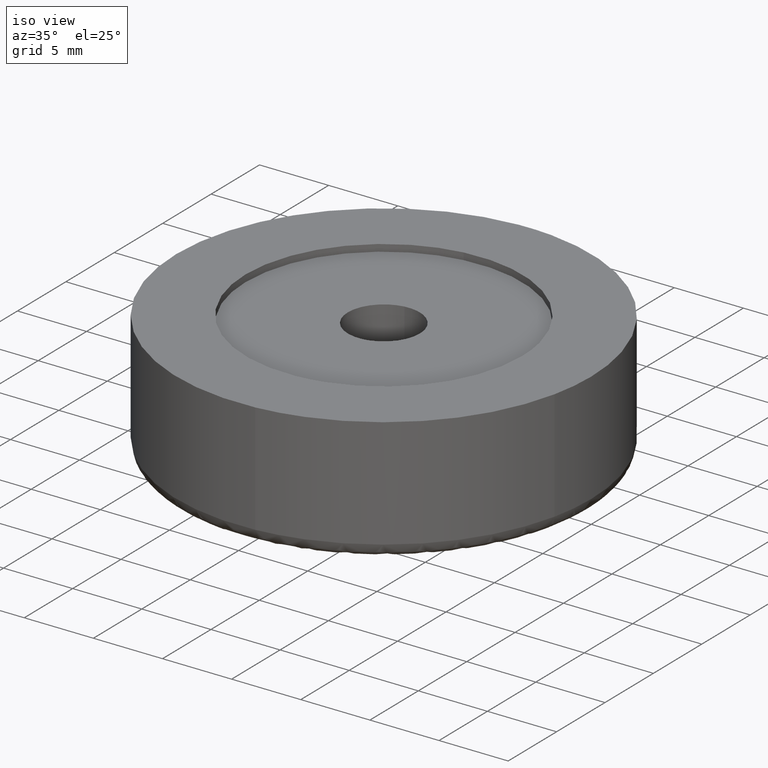
[diagram: clean part render]
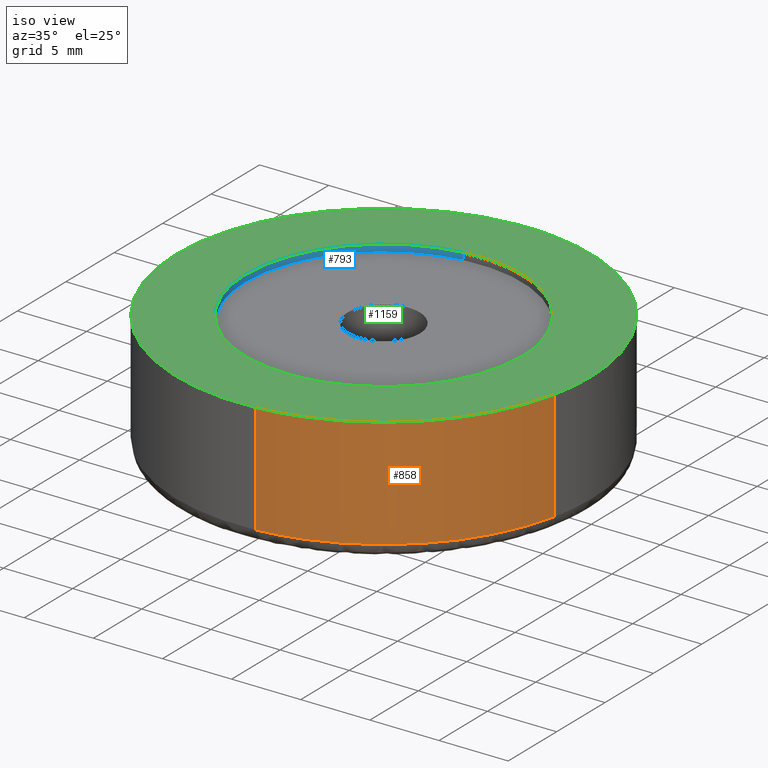
[diagram: same view with three faces highlighted in distinct colors, each labeled with its STEP entity id]
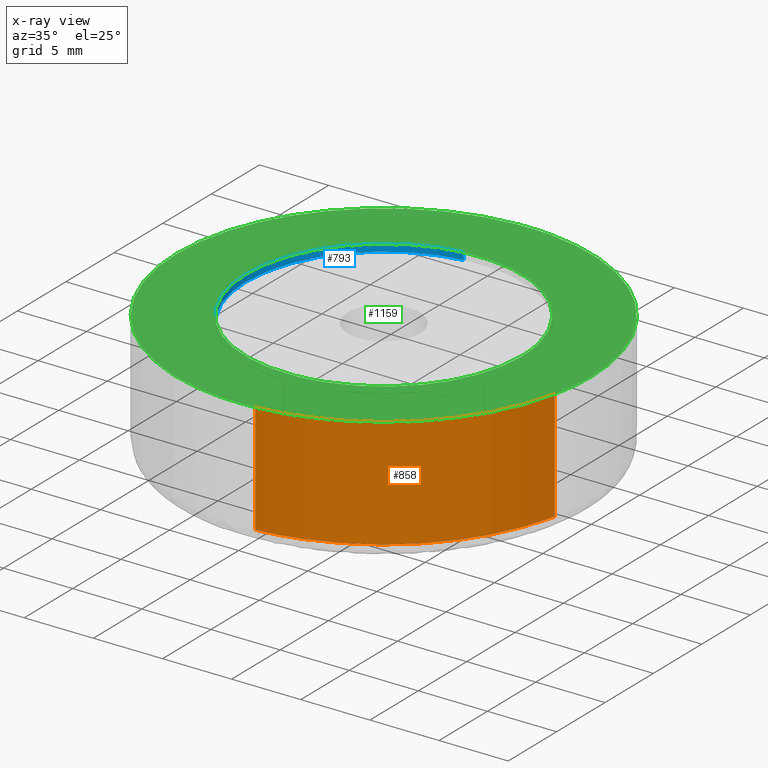
[diagram: x-ray of the same camera — body ghosted, the three highlighted faces saturated]
A machine part, iso view with three faces highlighted in distinct colors.
The next image is the same camera in x-ray (body ghosted, the three faces saturated) — at least one of them is partly hidden behind the body in this view.
Their STEP definitions:

[orange] entity #858 — the highlighted face is a freeform B-spline surface patch.
#794=CARTESIAN_POINT('',(14.659905936596909,-3.177404424619607,9.200000000003879));
#795=CARTESIAN_POINT('',(14.649727296626640,-3.222992206056471,9.200000000003877));
#796=CARTESIAN_POINT('',(12.224666383070369,-14.084280867533209,9.200000000003879));
#797=CARTESIAN_POINT('',(1.134635923434970,-14.957085193443520,9.200000000003881));
#798=CARTESIAN_POINT('',(1.092484188877186,-14.960402606898828,9.200000000003879));
#799=CARTESIAN_POINT('',(14.659905936596909,-3.177404424619607,0.794999999840890));
#800=CARTESIAN_POINT('',(14.649727296626640,-3.222992206056471,0.794999999840890));
#801=CARTESIAN_POINT('',(12.224666383070369,-14.084280867533209,0.794999999840890));
#802=CARTESIAN_POINT('',(1.134635923434970,-14.957085193443520,0.794999999840890));
#803=CARTESIAN_POINT('',(1.092484188877186,-14.960402606898828,0.794999999840890));
#811=(BOUNDED_SURFACE()B_SPLINE_SURFACE(2,1,((#794,#799),(#795,#800),(#796,#801),(#797,#802),(#798,#803)),.UNSPECIFIED.,.F.,.F.,.U.)B_SPLINE_SURFACE_WITH_KNOTS((3,1,1,3),(2,2),(0.0,0.098744083384174,19.845474941683872,19.944218859654061),(0.0,8.405000000162991),.UNSPECIFIED.)GEOMETRIC_REPRESENTATION_ITEM()RATIONAL_B_SPLINE_SURFACE(((0.907680205931852,0.907680205931852),(0.906977187955774,0.906977187955774),(0.765685424949238,0.765685424949238),(1.001171694663996,1.001171694663996),(1.002343389327992,1.002343389327992)))REPRESENTATION_ITEM('')SURFACE());
#812=CARTESIAN_POINT('',(14.639534999406409,-3.268641155137535,0.999999999999964));
#813=VERTEX_POINT('',#812);
#814=CARTESIAN_POINT('',(1.176877728282313,-14.953760691297580,1.000000000000031));
#815=VERTEX_POINT('',#814);
#816=CARTESIAN_POINT('',(14.639534999406402,-3.268641155137535,0.999999999999964));
#817=CARTESIAN_POINT('',(12.224672459072801,-14.084286862360996,1.0));
#818=CARTESIAN_POINT('',(1.176877728282313,-14.953760691297584,1.000000000000031));
#826=(BOUNDED_CURVE()B_SPLINE_CURVE(2,(#816,#817,#818),.UNSPECIFIED.,.F.,.U.)B_SPLINE_CURVE_WITH_KNOTS((3,3),(0.537286560370751,0.736331400453952),.UNSPECIFIED.)CURVE()GEOMETRIC_REPRESENTATION_ITEM()RATIONAL_B_SPLINE_CURVE((0.925662740296602,0.762027680026814,0.969723564491107))REPRESENTATION_ITEM(''));
#827=EDGE_CURVE('',#813,#815,#826,.T.);
#828=ORIENTED_EDGE('',*,*,#827,.F.);
#829=CARTESIAN_POINT('',(14.639534973064221,-3.268641273118853,9.0));
#830=VERTEX_POINT('',#829);
#831=CARTESIAN_POINT('',(14.639534973064221,-3.268641273118853,9.0));
#832=CARTESIAN_POINT('',(14.639534999406409,-3.268641155137535,0.999999999999964));
#833=QUASI_UNIFORM_CURVE('',1,(#831,#832),.UNSPECIFIED.,.F.,.U.);
#834=EDGE_CURVE('',#830,#813,#833,.T.);
#835=ORIENTED_EDGE('',*,*,#834,.F.);
#836=CARTESIAN_POINT('',(1.176877835670445,-14.953760682846070,9.0));
#837=VERTEX_POINT('',#836);
#838=CARTESIAN_POINT('',(14.639534973064219,-3.268641273118853,9.0));
#839=CARTESIAN_POINT('',(12.224672384069233,-14.084286788434422,9.000000000000002));
#840=CARTESIAN_POINT('',(1.176877835670445,-14.953760682846076,9.0));
#848=(BOUNDED_CURVE()B_SPLINE_CURVE(2,(#838,#839,#840),.UNSPECIFIED.,.F.,.U.)B_SPLINE_CURVE_WITH_KNOTS((3,3),(0.537286561689504,0.736331399222893),.UNSPECIFIED.)CURVE()GEOMETRIC_REPRESENTATION_ITEM()RATIONAL_B_SPLINE_CURVE((0.925662738128303,0.762027682414940,0.969723561921979))REPRESENTATION_ITEM(''));
#849=EDGE_CURVE('',#830,#837,#848,.T.);
#850=ORIENTED_EDGE('',*,*,#849,.T.);
#851=CARTESIAN_POINT('',(1.176877835670445,-14.953760682846070,9.0));
#852=CARTESIAN_POINT('',(1.176877728282313,-14.953760691297580,1.000000000000031));
#853=QUASI_UNIFORM_CURVE('',1,(#851,#852),.UNSPECIFIED.,.F.,.U.);
#854=EDGE_CURVE('',#837,#815,#853,.T.);
#855=ORIENTED_EDGE('',*,*,#854,.T.);
#856=EDGE_LOOP('',(#828,#835,#850,#855));
#857=FACE_OUTER_BOUND('',#856,.T.);
#858=ADVANCED_FACE('',(#857),#811,.T.);

[blue] entity #793 — the highlighted face is a freeform B-spline surface patch.
#630=CARTESIAN_POINT('',(-1.180332153544785,9.930096475221321,8.500000000000345));
#631=VERTEX_POINT('',#630);
#649=CARTESIAN_POINT('',(0.610481794740986,-9.981348204439959,8.500000000000181));
#650=VERTEX_POINT('',#649);
#664=CARTESIAN_POINT('',(0.610481839119763,-9.981348201725670,9.0));
#665=VERTEX_POINT('',#664);
#666=CARTESIAN_POINT('',(0.610481839119763,-9.981348201725670,9.0));
#667=CARTESIAN_POINT('',(0.610481794740986,-9.981348204439959,8.500000000000181));
#668=QUASI_UNIFORM_CURVE('',1,(#666,#667),.UNSPECIFIED.,.F.,.U.);
#669=EDGE_CURVE('',#665,#650,#668,.T.);
#686=CARTESIAN_POINT('',(-1.180332279283568,9.930096460275623,9.0));
#687=VERTEX_POINT('',#686);
#703=CARTESIAN_POINT('',(-1.180332279283568,9.930096460275623,9.0));
#704=CARTESIAN_POINT('',(-1.180332153544785,9.930096475221321,8.500000000000345));
#705=QUASI_UNIFORM_CURVE('',1,(#703,#704),.UNSPECIFIED.,.F.,.U.);
#706=EDGE_CURVE('',#687,#631,#705,.T.);
#711=CARTESIAN_POINT('',(0.610485395348570,-9.981347984218667,9.012500000000001));
#712=CARTESIAN_POINT('',(-9.370862588870097,-10.591833379567237,9.012500000000001));
#713=CARTESIAN_POINT('',(-9.981347984218667,-0.610485395348570,9.012500000000001));
#714=CARTESIAN_POINT('',(-10.557861967325275,8.815434908395007,9.012500000000001));
#715=CARTESIAN_POINT('',(-1.180342346567585,9.930095263636664,9.012500000000001));
#716=CARTESIAN_POINT('',(0.610485395348570,-9.981347984218667,8.487187499999997));
#717=CARTESIAN_POINT('',(-9.370862588870097,-10.591833379567237,8.487187499999997));
#718=CARTESIAN_POINT('',(-9.981347984218667,-0.610485395348570,8.487187499999997));
#719=CARTESIAN_POINT('',(-10.557861967325275,8.815434908395007,8.487187499999997));
#720=CARTESIAN_POINT('',(-1.180342346567585,9.930095263636664,8.487187499999996));
#728=(BOUNDED_SURFACE()B_SPLINE_SURFACE(2,1,((#711,#716),(#712,#717),(#713,#718),(#714,#719),(#715,#720)),.UNSPECIFIED.,.F.,.F.,.U.)B_SPLINE_SURFACE_WITH_KNOTS((3,2,3),(2,2),(0.0,16.568542494923800,32.474343290050641),(0.0,1.0),.UNSPECIFIED.)GEOMETRIC_REPRESENTATION_ITEM()RATIONAL_B_SPLINE_SURFACE(((1.0,1.0),(0.707106781186548,0.707106781186548),(1.0,1.0),(0.718822509939086,0.718822509939086),(0.977505800795127,0.977505800795127)))REPRESENTATION_ITEM('')SURFACE());
#729=CARTESIAN_POINT('',(-10.0,0.0,8.500000000000000));
#730=VERTEX_POINT('',#729);
#731=CARTESIAN_POINT('',(-10.0,0.0,8.500000000000000));
#732=CARTESIAN_POINT('',(-9.999999999999998,8.881754440611687,8.500000000000000));
#733=CARTESIAN_POINT('',(-1.180332153544785,9.930096475221321,8.500000000000345));
#741=(BOUNDED_CURVE()B_SPLINE_CURVE(2,(#731,#732,#733),.UNSPECIFIED.,.F.,.U.)B_SPLINE_CURVE_WITH_KNOTS((3,3),(0.0,0.229562646993746),.UNSPECIFIED.)CURVE()GEOMETRIC_REPRESENTATION_ITEM()RATIONAL_B_SPLINE_CURVE((1.0,0.731050629610661,0.956027094212347))REPRESENTATION_ITEM(''));
#742=EDGE_CURVE('',#730,#631,#741,.T.);
#743=ORIENTED_EDGE('',*,*,#742,.T.);
#744=ORIENTED_EDGE('',*,*,#706,.F.);
#745=CARTESIAN_POINT('',(-10.0,0.0,9.0));
#746=VERTEX_POINT('',#745);
#747=CARTESIAN_POINT('',(-10.0,0.0,9.0));
#748=CARTESIAN_POINT('',(-10.0,8.881754327355740,9.0));
#749=CARTESIAN_POINT('',(-1.180332279283568,9.930096460275623,9.0));
#757=(BOUNDED_CURVE()B_SPLINE_CURVE(2,(#747,#748,#749),.UNSPECIFIED.,.F.,.U.)B_SPLINE_CURVE_WITH_KNOTS((3,3),(0.0,0.229562644853760),.UNSPECIFIED.)CURVE()GEOMETRIC_REPRESENTATION_ITEM()RATIONAL_B_SPLINE_CURVE((1.0,0.731050632117811,0.956027090017880))REPRESENTATION_ITEM(''));
#758=EDGE_CURVE('',#746,#687,#757,.T.);
#759=ORIENTED_EDGE('',*,*,#758,.F.);
#760=CARTESIAN_POINT('',(0.610481839119763,-9.981348201725670,9.0));
#761=CARTESIAN_POINT('',(0.305525849885874,-9.999999999999998,9.0));
#762=CARTESIAN_POINT('',(0.0,-10.0,9.0));
#763=CARTESIAN_POINT('',(-10.000000000000002,-10.000000000000002,9.000000000000002));
#764=CARTESIAN_POINT('',(-10.0,0.0,9.0));
#772=(BOUNDED_CURVE()B_SPLINE_CURVE(2,(#760,#761,#762,#763,#764),.UNSPECIFIED.,.F.,.U.)B_SPLINE_CURVE_WITH_KNOTS((3,2,3),(0.739333023718223,0.750000000000000,1.0),.UNSPECIFIED.)CURVE()GEOMETRIC_REPRESENTATION_ITEM()RATIONAL_B_SPLINE_CURVE((0.976072173428554,0.987502859927295,1.0,0.707106781186548,1.0))REPRESENTATION_ITEM(''));
#773=EDGE_CURVE('',#665,#746,#772,.T.);
#774=ORIENTED_EDGE('',*,*,#773,.F.);
#775=ORIENTED_EDGE('',*,*,#669,.T.);
#776=CARTESIAN_POINT('',(0.610481794740986,-9.981348204439959,8.500000000000181));
#777=CARTESIAN_POINT('',(0.305525827634270,-10.0,8.500000000000000));
#778=CARTESIAN_POINT('',(0.0,-10.0,8.500000000000000));
#779=CARTESIAN_POINT('',(-10.000000000000002,-10.000000000000002,8.500000000000002));
#780=CARTESIAN_POINT('',(-10.0,0.0,8.500000000000000));
#788=(BOUNDED_CURVE()B_SPLINE_CURVE(2,(#776,#777,#778,#779,#780),.UNSPECIFIED.,.F.,.U.)B_SPLINE_CURVE_WITH_KNOTS((3,2,3),(0.739333024485396,0.750000000000000,1.0),.UNSPECIFIED.)CURVE()GEOMETRIC_REPRESENTATION_ITEM()RATIONAL_B_SPLINE_CURVE((0.976072175072751,0.987502860826093,1.0,0.707106781186548,1.0))REPRESENTATION_ITEM(''));
#789=EDGE_CURVE('',#650,#730,#788,.T.);
#790=ORIENTED_EDGE('',*,*,#789,.T.);
#791=EDGE_LOOP('',(#743,#744,#759,#774,#775,#790));
#792=FACE_OUTER_BOUND('',#791,.T.);
#793=ADVANCED_FACE('',(#792),#728,.F.);

[green] entity #1159 — the highlighted face is a freeform B-spline surface patch.
#664=CARTESIAN_POINT('',(0.610481839119763,-9.981348201725670,9.0));
#665=VERTEX_POINT('',#664);
#671=CARTESIAN_POINT('',(10.0,0.0,9.0));
#672=VERTEX_POINT('',#671);
#673=CARTESIAN_POINT('',(10.0,0.0,9.0));
#674=CARTESIAN_POINT('',(10.0,-9.407064026938018,9.000000000000002));
#675=CARTESIAN_POINT('',(0.610481839119763,-9.981348201725670,9.0));
#683=(BOUNDED_CURVE()B_SPLINE_CURVE(2,(#673,#674,#675),.UNSPECIFIED.,.F.,.U.)B_SPLINE_CURVE_WITH_KNOTS((3,3),(0.500000000000000,0.739333023718223),.UNSPECIFIED.)CURVE()GEOMETRIC_REPRESENTATION_ITEM()RATIONAL_B_SPLINE_CURVE((1.0,0.719603921259253,0.976072173428554))REPRESENTATION_ITEM(''));
#684=EDGE_CURVE('',#672,#665,#683,.T.);
#686=CARTESIAN_POINT('',(-1.180332279283568,9.930096460275623,9.0));
#687=VERTEX_POINT('',#686);
#688=CARTESIAN_POINT('',(-1.180332279283568,9.930096460275623,9.0));
#689=CARTESIAN_POINT('',(-0.592236109662837,10.0,8.999999999999998));
#690=CARTESIAN_POINT('',(0.0,10.0,9.0));
#691=CARTESIAN_POINT('',(10.000000000000002,10.000000000000002,9.000000000000002));
#692=CARTESIAN_POINT('',(10.0,0.0,9.0));
#700=(BOUNDED_CURVE()B_SPLINE_CURVE(2,(#688,#689,#690,#691,#692),.UNSPECIFIED.,.F.,.U.)B_SPLINE_CURVE_WITH_KNOTS((3,2,3),(0.229562644853760,0.250000000000000,0.500000000000000),.UNSPECIFIED.)CURVE()GEOMETRIC_REPRESENTATION_ITEM()RATIONAL_B_SPLINE_CURVE((0.956027090017880,0.976056149068737,1.0,0.707106781186548,1.0))REPRESENTATION_ITEM(''));
#701=EDGE_CURVE('',#687,#672,#700,.T.);
#745=CARTESIAN_POINT('',(-10.0,0.0,9.0));
#746=VERTEX_POINT('',#745);
#747=CARTESIAN_POINT('',(-10.0,0.0,9.0));
#748=CARTESIAN_POINT('',(-10.0,8.881754327355740,9.0));
#749=CARTESIAN_POINT('',(-1.180332279283568,9.930096460275623,9.0));
#757=(BOUNDED_CURVE()B_SPLINE_CURVE(2,(#747,#748,#749),.UNSPECIFIED.,.F.,.U.)B_SPLINE_CURVE_WITH_KNOTS((3,3),(0.0,0.229562644853760),.UNSPECIFIED.)CURVE()GEOMETRIC_REPRESENTATION_ITEM()RATIONAL_B_SPLINE_CURVE((1.0,0.731050632117811,0.956027090017880))REPRESENTATION_ITEM(''));
#758=EDGE_CURVE('',#746,#687,#757,.T.);
#760=CARTESIAN_POINT('',(0.610481839119763,-9.981348201725670,9.0));
#761=CARTESIAN_POINT('',(0.305525849885874,-9.999999999999998,9.0));
#762=CARTESIAN_POINT('',(0.0,-10.0,9.0));
#763=CARTESIAN_POINT('',(-10.000000000000002,-10.000000000000002,9.000000000000002));
#764=CARTESIAN_POINT('',(-10.0,0.0,9.0));
#772=(BOUNDED_CURVE()B_SPLINE_CURVE(2,(#760,#761,#762,#763,#764),.UNSPECIFIED.,.F.,.U.)B_SPLINE_CURVE_WITH_KNOTS((3,2,3),(0.739333023718223,0.750000000000000,1.0),.UNSPECIFIED.)CURVE()GEOMETRIC_REPRESENTATION_ITEM()RATIONAL_B_SPLINE_CURVE((0.976072173428554,0.987502859927295,1.0,0.707106781186548,1.0))REPRESENTATION_ITEM(''));
#773=EDGE_CURVE('',#665,#746,#772,.T.);
#829=CARTESIAN_POINT('',(14.639534973064221,-3.268641273118853,9.0));
#830=VERTEX_POINT('',#829);
#836=CARTESIAN_POINT('',(1.176877835670445,-14.953760682846070,9.0));
#837=VERTEX_POINT('',#836);
#838=CARTESIAN_POINT('',(14.639534973064219,-3.268641273118853,9.0));
#839=CARTESIAN_POINT('',(12.224672384069233,-14.084286788434422,9.000000000000002));
#840=CARTESIAN_POINT('',(1.176877835670445,-14.953760682846076,9.0));
#848=(BOUNDED_CURVE()B_SPLINE_CURVE(2,(#838,#839,#840),.UNSPECIFIED.,.F.,.U.)B_SPLINE_CURVE_WITH_KNOTS((3,3),(0.537286561689504,0.736331399222893),.UNSPECIFIED.)CURVE()GEOMETRIC_REPRESENTATION_ITEM()RATIONAL_B_SPLINE_CURVE((0.925662738128303,0.762027682414940,0.969723561921979))REPRESENTATION_ITEM(''));
#849=EDGE_CURVE('',#830,#837,#848,.T.);
#963=CARTESIAN_POINT('',(-15.0,0.0,9.0));
#964=VERTEX_POINT('',#963);
#965=CARTESIAN_POINT('',(1.176877835670445,-14.953760682846076,9.0));
#966=CARTESIAN_POINT('',(0.589347285036158,-15.000000000000004,9.0));
#967=CARTESIAN_POINT('',(0.0,-15.0,9.0));
#968=CARTESIAN_POINT('',(-14.999999999999996,-14.999999999999996,9.0));
#969=CARTESIAN_POINT('',(-15.0,0.0,9.0));
#977=(BOUNDED_CURVE()B_SPLINE_CURVE(2,(#965,#966,#967,#968,#969),.UNSPECIFIED.,.F.,.U.)B_SPLINE_CURVE_WITH_KNOTS((3,2,3),(0.736331399222893,0.750000000000000,1.0),.UNSPECIFIED.)CURVE()GEOMETRIC_REPRESENTATION_ITEM()RATIONAL_B_SPLINE_CURVE((0.969723561921979,0.983986238086868,1.0,0.707106781186547,1.0))REPRESENTATION_ITEM(''));
#978=EDGE_CURVE('',#837,#964,#977,.T.);
#980=CARTESIAN_POINT('',(15.0,0.0,9.0));
#981=VERTEX_POINT('',#980);
#982=CARTESIAN_POINT('',(-15.0,0.0,9.0));
#983=CARTESIAN_POINT('',(-14.999999999999996,14.999999999999996,9.0));
#984=CARTESIAN_POINT('',(0.0,15.0,9.0));
#985=CARTESIAN_POINT('',(14.999999999999996,14.999999999999996,9.0));
#986=CARTESIAN_POINT('',(15.0,0.0,9.0));
#994=(BOUNDED_CURVE()B_SPLINE_CURVE(2,(#982,#983,#984,#985,#986),.UNSPECIFIED.,.F.,.U.)B_SPLINE_CURVE_WITH_KNOTS((3,2,3),(0.0,0.250000000000000,0.500000000000000),.UNSPECIFIED.)CURVE()GEOMETRIC_REPRESENTATION_ITEM()RATIONAL_B_SPLINE_CURVE((1.0,0.707106781186547,1.0,0.707106781186547,1.0))REPRESENTATION_ITEM(''));
#995=EDGE_CURVE('',#964,#981,#994,.T.);
#997=CARTESIAN_POINT('',(15.0,0.0,9.0));
#998=CARTESIAN_POINT('',(14.999999999999998,-1.654196637745669,9.0));
#999=CARTESIAN_POINT('',(14.639534973064219,-3.268641273118853,9.0));
#1007=(BOUNDED_CURVE()B_SPLINE_CURVE(2,(#997,#998,#999),.UNSPECIFIED.,.F.,.U.)B_SPLINE_CURVE_WITH_KNOTS((3,3),(0.500000000000000,0.537286561689504),.UNSPECIFIED.)CURVE()GEOMETRIC_REPRESENTATION_ITEM()RATIONAL_B_SPLINE_CURVE((1.0,0.956316075713099,0.925662738128303))REPRESENTATION_ITEM(''));
#1008=EDGE_CURVE('',#981,#830,#1007,.T.);
#1142=CARTESIAN_POINT('',(-16.498499941854181,-16.494129222182931,9.0));
#1143=CARTESIAN_POINT('',(16.498500746516889,-16.494129222182931,9.0));
#1144=CARTESIAN_POINT('',(-16.498499941854181,16.498292815236749,9.0));
#1145=CARTESIAN_POINT('',(16.498500746516889,16.498292815236749,9.0));
#1146=B_SPLINE_SURFACE_WITH_KNOTS('',1,1,((#1142,#1144),(#1143,#1145)),.UNSPECIFIED.,.F.,.F.,.U.,(2,2),(2,2),(0.0,32.997000688371060),(0.0,32.992422037419672),.UNSPECIFIED.);
#1147=ORIENTED_EDGE('',*,*,#978,.F.);
#1148=ORIENTED_EDGE('',*,*,#849,.F.);
#1149=ORIENTED_EDGE('',*,*,#1008,.F.);
#1150=ORIENTED_EDGE('',*,*,#995,.F.);
#1151=EDGE_LOOP('',(#1147,#1148,#1149,#1150));
#1152=FACE_OUTER_BOUND('',#1151,.T.);
#1153=ORIENTED_EDGE('',*,*,#684,.T.);
#1154=ORIENTED_EDGE('',*,*,#773,.T.);
#1155=ORIENTED_EDGE('',*,*,#758,.T.);
#1156=ORIENTED_EDGE('',*,*,#701,.T.);
#1157=EDGE_LOOP('',(#1153,#1154,#1155,#1156));
#1158=FACE_BOUND('',#1157,.T.);
#1159=ADVANCED_FACE('',(#1152,#1158),#1146,.T.);